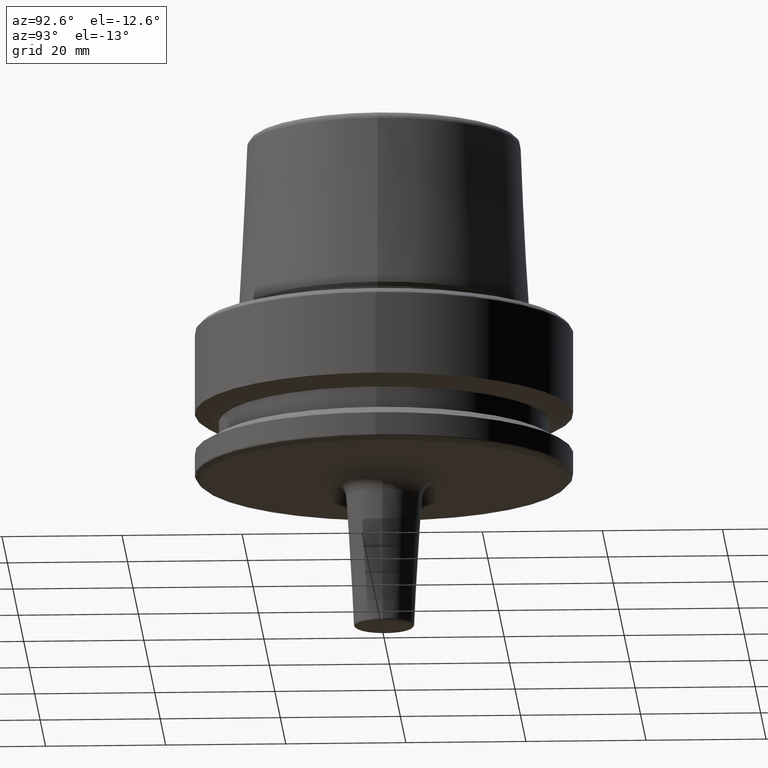
[diagram: clean part render]
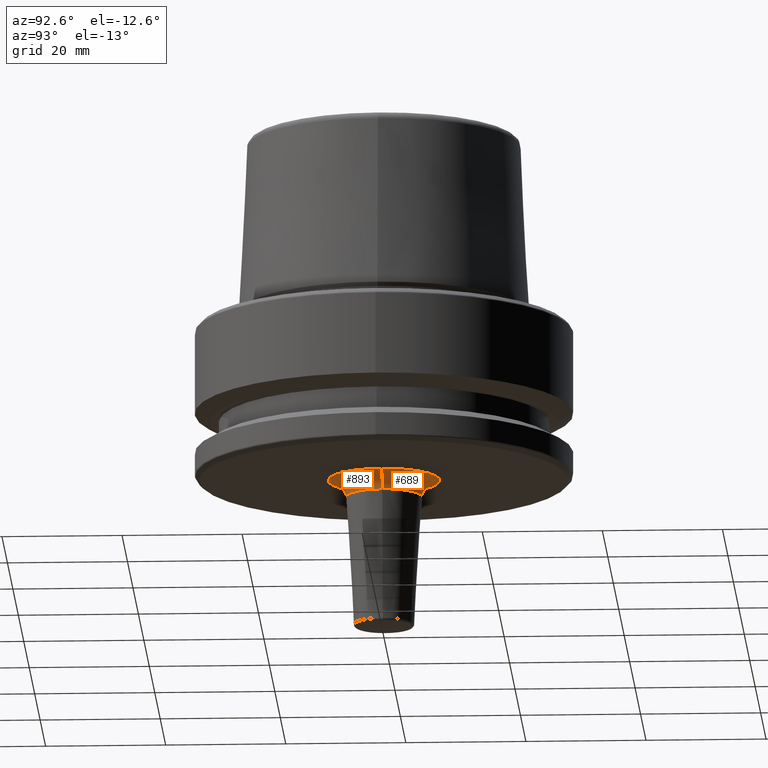
[diagram: same view with one multi-face feature highlighted, each face labeled with its STEP entity id]
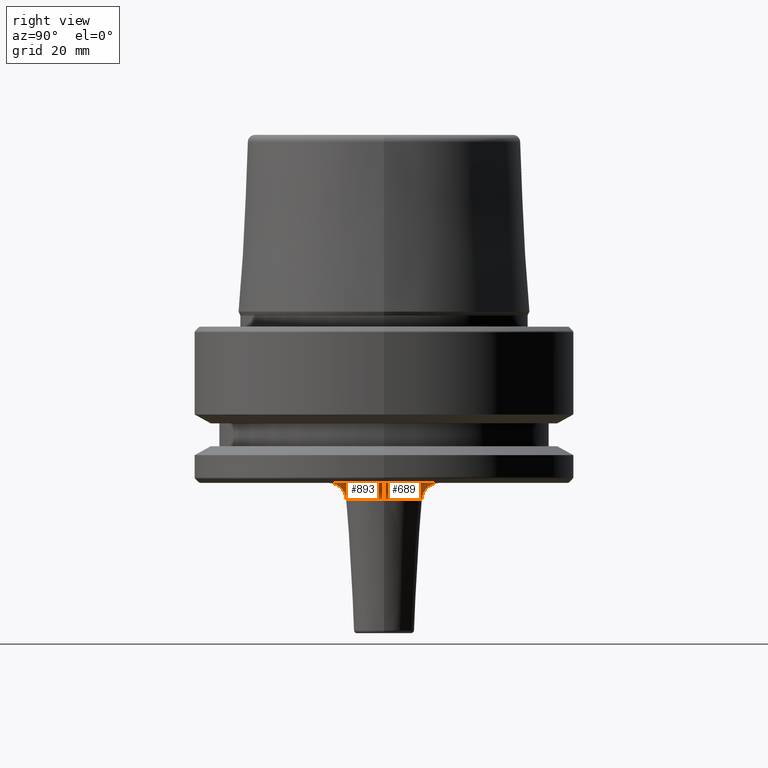
[diagram: same view with one multi-face feature highlighted, each face labeled with its STEP entity id]
A machine part, auxiliary view. The highlighted faces form ONE feature: a constant-radius fillet chain: 2 tangent blend faces with common blend radius 3 mm. The faces share edges in the B-rep.
A second angle (right view) of the same feature is appended — it is thin or edge-on in the first view.
Their STEP definitions:
[1] entity #893 (Torus):
#5 = AXIS2_PLACEMENT_3D ( 'NONE', #756, #766, #154 ) ;
#21 = ORIENTED_EDGE ( 'NONE', *, *, #520, .F. ) ;
#55 = VERTEX_POINT ( 'NONE', #724 ) ;
#97 = VERTEX_POINT ( 'NONE', #1098 ) ;
#140 = CIRCLE ( 'NONE', #296, 9.325395148728359700 ) ;
#147 = CIRCLE ( 'NONE', #5, 2.999999999999999100 ) ;
#154 = DIRECTION ( 'NONE',  ( -1.000000000000000000, 1.224646799147353500E-016, 0.0000000000000000000 ) ) ;
#171 = CARTESIAN_POINT ( 'NONE',  ( 6.330780612331023100, 0.0000000000000000000, -28.82032312781617000 ) ) ;
#216 = CARTESIAN_POINT ( 'NONE',  ( -9.325395148728359700, 1.142031531967444200E-015, -26.00000000000001100 ) ) ;
#229 = EDGE_CURVE ( 'NONE', #1141, #97, #437, .T. ) ;
#251 = CARTESIAN_POINT ( 'NONE',  ( 9.325395148728359700, 0.0000000000000000000, -29.00000000000000700 ) ) ;
#282 = AXIS2_PLACEMENT_3D ( 'NONE', #547, #731, #928 ) ;
#296 = AXIS2_PLACEMENT_3D ( 'NONE', #906, #518, #1150 ) ;
#365 = TOROIDAL_SURFACE ( 'NONE', #282, 9.325395148728359700, 3.000000000000000000 ) ;
#394 = FACE_OUTER_BOUND ( 'NONE', #654, .T. ) ;
#395 = EDGE_CURVE ( 'NONE', #817, #97, #147, .T. ) ;
#401 = EDGE_CURVE ( 'NONE', #55, #1141, #981, .T. ) ;
#437 = CIRCLE ( 'NONE', #1064, 6.330780612331024800 ) ;
#442 = DIRECTION ( 'NONE',  ( -0.0000000000000000000, -0.0000000000000000000, -1.000000000000000000 ) ) ;
#518 = DIRECTION ( 'NONE',  ( -0.0000000000000000000, -0.0000000000000000000, 1.000000000000000000 ) ) ;
#520 = EDGE_CURVE ( 'NONE', #817, #55, #140, .T. ) ;
#547 = CARTESIAN_POINT ( 'NONE',  ( 0.0000000000000000000, 0.0000000000000000000, -29.00000000000000700 ) ) ;
#554 = DIRECTION ( 'NONE',  ( 0.0000000000000000000, -1.000000000000000000, 0.0000000000000000000 ) ) ;
#600 = ORIENTED_EDGE ( 'NONE', *, *, #401, .F. ) ;
#654 = EDGE_LOOP ( 'NONE', ( #21, #1147, #1208, #600 ) ) ;
#714 = DIRECTION ( 'NONE',  ( 1.000000000000000000, 0.0000000000000000000, 0.0000000000000000000 ) ) ;
#722 = CARTESIAN_POINT ( 'NONE',  ( 0.0000000000000000000, 0.0000000000000000000, -28.82032312781617000 ) ) ;
#724 = CARTESIAN_POINT ( 'NONE',  ( 9.325395148728359700, 0.0000000000000000000, -26.00000000000001100 ) ) ;
#731 = DIRECTION ( 'NONE',  ( -0.0000000000000000000, -0.0000000000000000000, 1.000000000000000000 ) ) ;
#756 = CARTESIAN_POINT ( 'NONE',  ( -9.325395148728359700, 1.142031531967444200E-015, -29.00000000000000700 ) ) ;
#766 = DIRECTION ( 'NONE',  ( 1.224646799147353200E-016, 1.000000000000000000, 0.0000000000000000000 ) ) ;
#811 = AXIS2_PLACEMENT_3D ( 'NONE', #251, #554, #1123 ) ;
#817 = VERTEX_POINT ( 'NONE', #216 ) ;
#893 = ADVANCED_FACE ( 'NONE', ( #394 ), #365, .F. ) ;
#906 = CARTESIAN_POINT ( 'NONE',  ( 0.0000000000000000000, 0.0000000000000000000, -26.00000000000001100 ) ) ;
#928 = DIRECTION ( 'NONE',  ( 1.000000000000000000, 0.0000000000000000000, 0.0000000000000000000 ) ) ;
#981 = CIRCLE ( 'NONE', #811, 2.999999999999999100 ) ;
#1064 = AXIS2_PLACEMENT_3D ( 'NONE', #722, #442, #714 ) ;
#1098 = CARTESIAN_POINT ( 'NONE',  ( -6.330780612331023100, 7.752970212995308400E-016, -28.82032312781617000 ) ) ;
#1123 = DIRECTION ( 'NONE',  ( 0.0000000000000000000, 0.0000000000000000000, -1.000000000000000000 ) ) ;
#1141 = VERTEX_POINT ( 'NONE', #171 ) ;
#1147 = ORIENTED_EDGE ( 'NONE', *, *, #395, .T. ) ;
#1150 = DIRECTION ( 'NONE',  ( 1.000000000000000000, 0.0000000000000000000, 0.0000000000000000000 ) ) ;
#1208 = ORIENTED_EDGE ( 'NONE', *, *, #229, .F. ) ;
[2] entity #689 (Torus):
#5 = AXIS2_PLACEMENT_3D ( 'NONE', #756, #766, #154 ) ;
#10 = ORIENTED_EDGE ( 'NONE', *, *, #395, .F. ) ;
#45 = DIRECTION ( 'NONE',  ( 1.000000000000000000, 0.0000000000000000000, 0.0000000000000000000 ) ) ;
#54 = DIRECTION ( 'NONE',  ( -0.0000000000000000000, -0.0000000000000000000, 1.000000000000000000 ) ) ;
#55 = VERTEX_POINT ( 'NONE', #724 ) ;
#87 = TOROIDAL_SURFACE ( 'NONE', #212, 9.325395148728359700, 3.000000000000000000 ) ;
#97 = VERTEX_POINT ( 'NONE', #1098 ) ;
#147 = CIRCLE ( 'NONE', #5, 2.999999999999999100 ) ;
#154 = DIRECTION ( 'NONE',  ( -1.000000000000000000, 1.224646799147353500E-016, 0.0000000000000000000 ) ) ;
#160 = EDGE_CURVE ( 'NONE', #55, #817, #470, .T. ) ;
#171 = CARTESIAN_POINT ( 'NONE',  ( 6.330780612331023100, 0.0000000000000000000, -28.82032312781617000 ) ) ;
#180 = AXIS2_PLACEMENT_3D ( 'NONE', #838, #54, #1004 ) ;
#212 = AXIS2_PLACEMENT_3D ( 'NONE', #876, #499, #45 ) ;
#216 = CARTESIAN_POINT ( 'NONE',  ( -9.325395148728359700, 1.142031531967444200E-015, -26.00000000000001100 ) ) ;
#251 = CARTESIAN_POINT ( 'NONE',  ( 9.325395148728359700, 0.0000000000000000000, -29.00000000000000700 ) ) ;
#297 = ORIENTED_EDGE ( 'NONE', *, *, #160, .F. ) ;
#339 = ORIENTED_EDGE ( 'NONE', *, *, #401, .T. ) ;
#395 = EDGE_CURVE ( 'NONE', #817, #97, #147, .T. ) ;
#401 = EDGE_CURVE ( 'NONE', #55, #1141, #981, .T. ) ;
#457 = EDGE_CURVE ( 'NONE', #97, #1141, #557, .T. ) ;
#458 = DIRECTION ( 'NONE',  ( 1.000000000000000000, 0.0000000000000000000, 0.0000000000000000000 ) ) ;
#470 = CIRCLE ( 'NONE', #180, 9.325395148728359700 ) ;
#499 = DIRECTION ( 'NONE',  ( -0.0000000000000000000, -0.0000000000000000000, 1.000000000000000000 ) ) ;
#554 = DIRECTION ( 'NONE',  ( 0.0000000000000000000, -1.000000000000000000, 0.0000000000000000000 ) ) ;
#557 = CIRCLE ( 'NONE', #586, 6.330780612331024800 ) ;
#586 = AXIS2_PLACEMENT_3D ( 'NONE', #850, #750, #458 ) ;
#592 = FACE_OUTER_BOUND ( 'NONE', #952, .T. ) ;
#689 = ADVANCED_FACE ( 'NONE', ( #592 ), #87, .F. ) ;
#724 = CARTESIAN_POINT ( 'NONE',  ( 9.325395148728359700, 0.0000000000000000000, -26.00000000000001100 ) ) ;
#750 = DIRECTION ( 'NONE',  ( -0.0000000000000000000, -0.0000000000000000000, -1.000000000000000000 ) ) ;
#756 = CARTESIAN_POINT ( 'NONE',  ( -9.325395148728359700, 1.142031531967444200E-015, -29.00000000000000700 ) ) ;
#766 = DIRECTION ( 'NONE',  ( 1.224646799147353200E-016, 1.000000000000000000, 0.0000000000000000000 ) ) ;
#807 = ORIENTED_EDGE ( 'NONE', *, *, #457, .F. ) ;
#811 = AXIS2_PLACEMENT_3D ( 'NONE', #251, #554, #1123 ) ;
#817 = VERTEX_POINT ( 'NONE', #216 ) ;
#838 = CARTESIAN_POINT ( 'NONE',  ( 0.0000000000000000000, 0.0000000000000000000, -26.00000000000001100 ) ) ;
#850 = CARTESIAN_POINT ( 'NONE',  ( 0.0000000000000000000, 0.0000000000000000000, -28.82032312781617000 ) ) ;
#876 = CARTESIAN_POINT ( 'NONE',  ( 0.0000000000000000000, 0.0000000000000000000, -29.00000000000000700 ) ) ;
#952 = EDGE_LOOP ( 'NONE', ( #10, #297, #339, #807 ) ) ;
#981 = CIRCLE ( 'NONE', #811, 2.999999999999999100 ) ;
#1004 = DIRECTION ( 'NONE',  ( 1.000000000000000000, 0.0000000000000000000, 0.0000000000000000000 ) ) ;
#1098 = CARTESIAN_POINT ( 'NONE',  ( -6.330780612331023100, 7.752970212995308400E-016, -28.82032312781617000 ) ) ;
#1123 = DIRECTION ( 'NONE',  ( 0.0000000000000000000, 0.0000000000000000000, -1.000000000000000000 ) ) ;
#1141 = VERTEX_POINT ( 'NONE', #171 ) ;